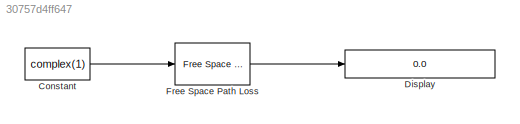
MODEL slx_30757d4ff647
KIND model
BLOCK [Constant] Constant
  Value = complex(1)
BLOCK [Display] Display
  Decimation = 1
  Ports = [1]
BLOCK [Reference] Free Space Path Loss  REF=commrflib2/Free Space
Path Loss
  Ports = [1, 1]
  SourceBlock = commrflib2/Free Space\nPath Loss
  SourceType = Free Space Path Loss
  d = 0.5
  dB = 72
  fc = 180
  mode = Distance and Frequency
LINE Constant:1 -> Free Space Path Loss:1
LINE Free Space Path Loss:1 -> Display:1
